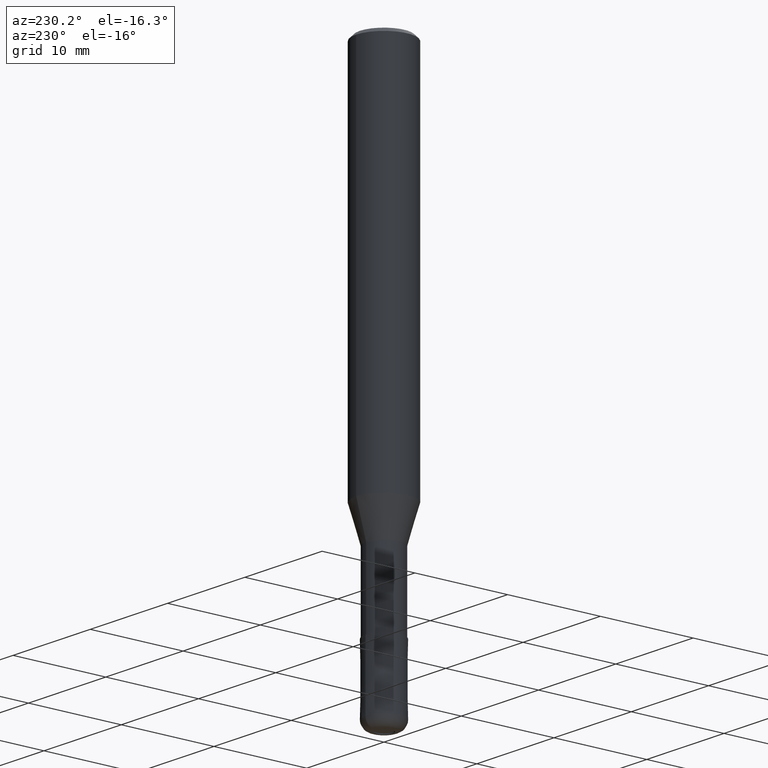
[diagram: clean part render]
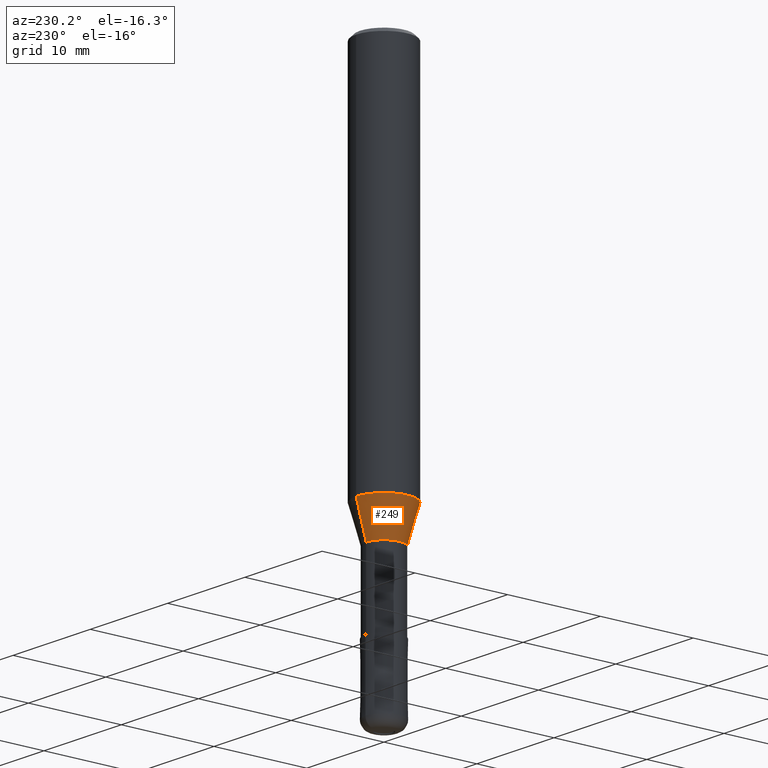
[diagram: same view with one face highlighted and labeled with its STEP entity id]
A machine part, auxiliary view. The second image highlights one B-rep face of the part: STEP entity #249.
In plain terms, the highlighted conical surface has half-angle 16 deg.
Its self-contained STEP definition (entity closure, byte-faithful):
#125=EDGE_CURVE('',#203,#299,#328,.T.);
#137=VERTEX_POINT('',#344);
#175=VERTEX_POINT('',#386);
#203=VERTEX_POINT('',#417);
#247=EDGE_CURVE('',#137,#175,#470,.T.);
#249=ADVANCED_FACE('',(#472),#473,.T.);
#271=EDGE_CURVE('',#137,#203,#496,.T.);
#273=EDGE_CURVE('',#299,#175,#498,.T.);
#299=VERTEX_POINT('',#527);
#328=CIRCLE('',#550,2.99995);
#344=CARTESIAN_POINT('',(2.35730600079038E-016,-1.92495,-44.0));
#386=CARTESIAN_POINT('',(0.0,1.92495,-44.0));
#417=CARTESIAN_POINT('',(3.67375783114944E-016,-2.99995,-40.251));
#470=CIRCLE('',#733,1.92495);
#472=FACE_OUTER_BOUND('',#735,.T.);
#473=CONICAL_SURFACE('',#736,2.46245,0.279250597330102);
#496=LINE('',#761,#762);
#498=LINE('',#765,#766);
#527=CARTESIAN_POINT('',(0.0,2.99995,-40.251));
#550=AXIS2_PLACEMENT_3D('',#813,#814,#815);
#733=AXIS2_PLACEMENT_3D('',#1007,#1008,#1009);
#735=EDGE_LOOP('',(#1011,#1012,#1013,#1014));
#736=AXIS2_PLACEMENT_3D('',#1015,#1016,#1017);
#761=CARTESIAN_POINT('',(3.01553191596991E-016,-2.46245,-42.1255));
#762=VECTOR('',#1033,1.0);
#765=CARTESIAN_POINT('',(-3.01553191596991E-016,2.46245,-42.1255));
#766=VECTOR('',#1034,1.0);
#813=CARTESIAN_POINT('',(0.0,0.0,-40.251));
#814=DIRECTION('',(0.0,0.0,-1.0));
#815=DIRECTION('',(0.0,1.0,0.0));
#1007=CARTESIAN_POINT('',(0.0,0.0,-44.0));
#1008=DIRECTION('',(0.0,0.0,-1.0));
#1009=DIRECTION('',(0.0,1.0,0.0));
#1011=ORIENTED_EDGE('',*,*,#273,.T.);
#1012=ORIENTED_EDGE('',*,*,#247,.F.);
#1013=ORIENTED_EDGE('',*,*,#271,.T.);
#1014=ORIENTED_EDGE('',*,*,#125,.T.);
#1015=CARTESIAN_POINT('',(0.0,0.0,-42.1255));
#1016=DIRECTION('',(-0.0,-0.0,1.0));
#1017=DIRECTION('',(0.0,1.0,0.0));
#1033=DIRECTION('',(3.37544805257287E-017,-0.275635353518871,0.961262270085811));
#1034=DIRECTION('',(3.37544805257286E-017,-0.275635353518871,-0.961262270085811));